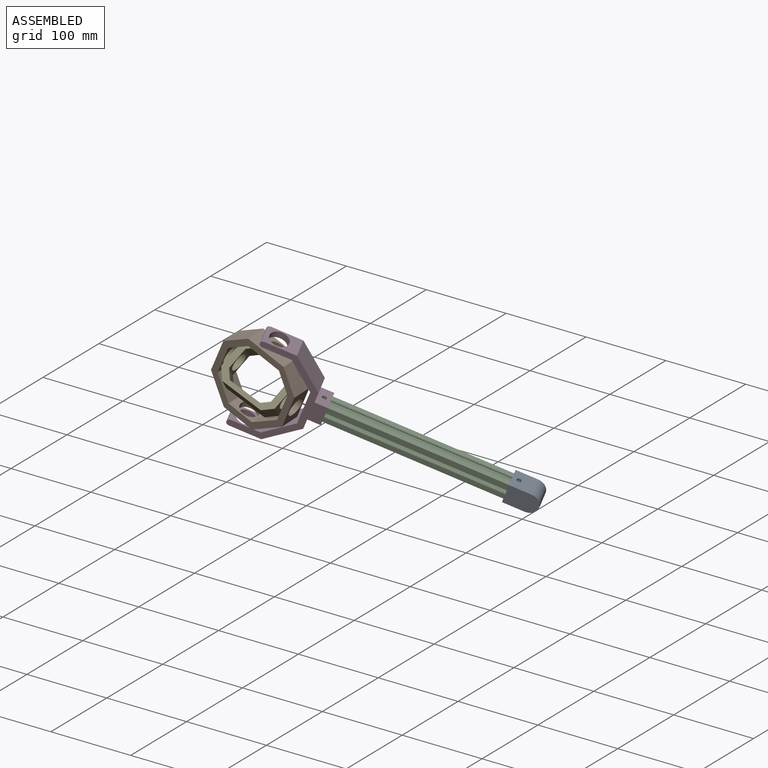
[diagram: assembled view]
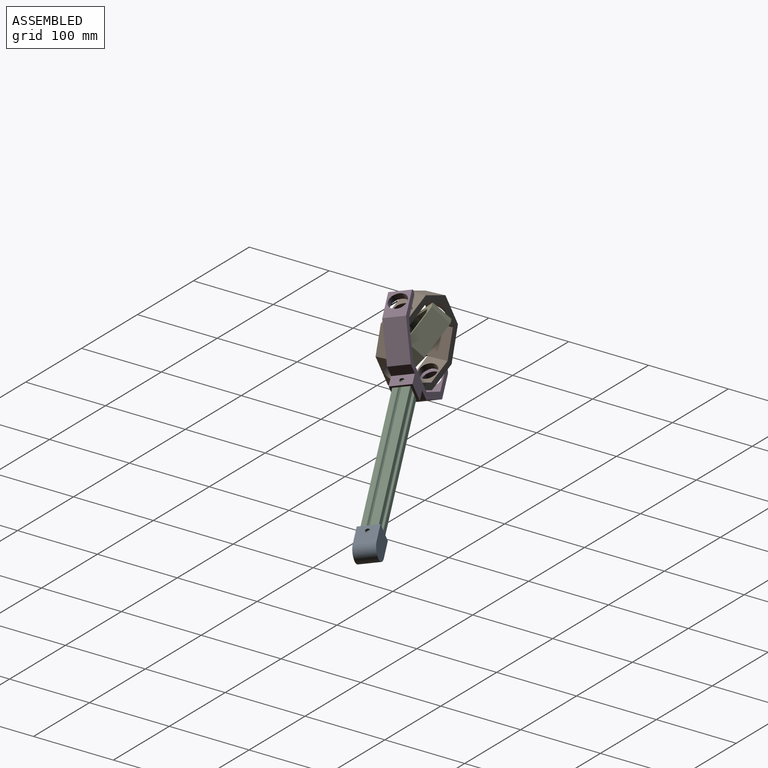
[diagram: assembled view, second angle]
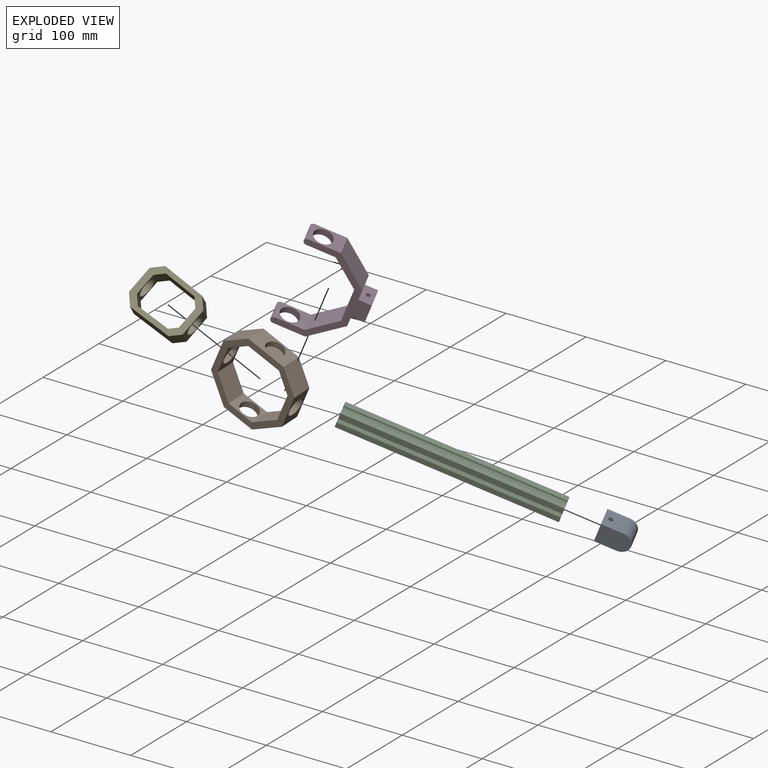
[diagram: exploded view]
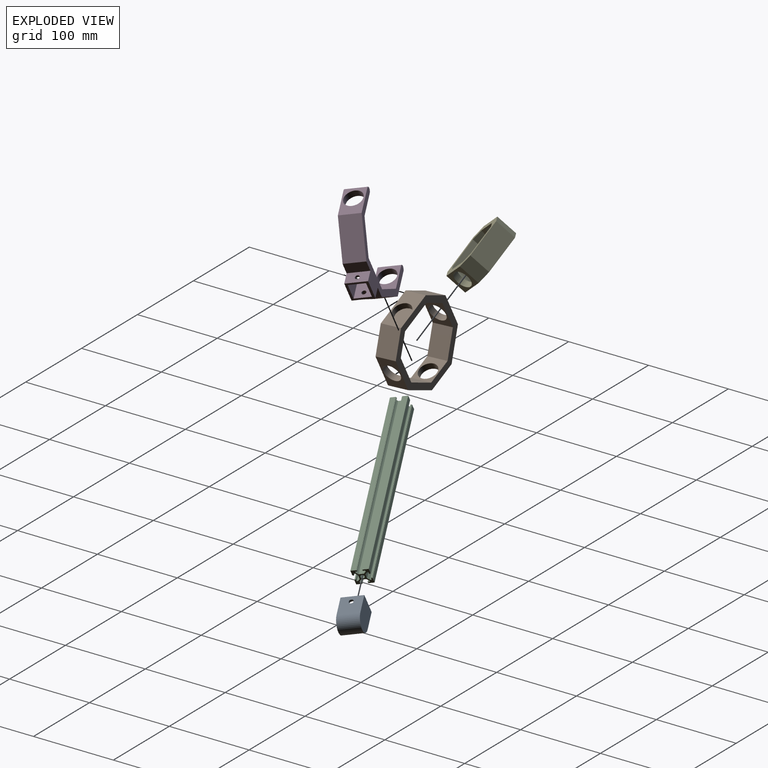
[diagram: exploded view, second angle]
ASSEMBLY  parts=5 mates=4
PART A: 13 faces, bbox 37.5x25x26 mm
  f0: plane 26x25mm, normal (-1,0,0), area 250mm2, adj f1,f2,f4,f5,f6,f7,f8,f9
  f1: plane 26x25mm, normal (0,1,0), area 626.2mm2, adj f0,f3,f4,f5,f11
  f2: plane 26x25mm, normal (0,-1,0), area 626.2mm2, adj f0,f3,f4,f5,f12
  f3: cylinder r=12.5mm len=26mm, axis (0,0,-1), area 1021mm2, adj f1,f2,f4,f5
  f4: plane 37.5x25mm, normal (0,0,1), area 870.4mm2, adj f0,f1,f2,f3
  f5: plane 37.5x25mm, normal (0,0,-1), area 870.4mm2, adj f0,f1,f2,f3
  f6: plane 25x20mm, normal (0,1,0), area 476.2mm2, adj f0,f7,f9,f10,f12
  f7: plane 25x20mm, normal (0,0,-1), area 500mm2, adj f0,f6,f8,f10
  f8: plane 25x20mm, normal (0,-1,0), area 476.2mm2, adj f0,f7,f9,f10,f11
  f9: plane 25x20mm, normal (0,0,1), area 500mm2, adj f0,f6,f8,f10
  f10: plane 20x20mm, normal (-1,0,0), area 400mm2, adj f6,f7,f8,f9
  f11: cylinder r=2.75mm len=5.5mm, axis (0,-1,0), area 43.2mm2, adj f1,f8
  f12: cylinder r=2.75mm len=5.5mm, axis (0,-1,0), area 43.2mm2, adj f2,f6
PART B: 23 faces, bbox 97.8x96.6x26 mm
  f0: plane 29.51x29.51mm, normal (0.71,-0.71,0), area 1085.2mm2, adj f1,f15,f16,f17
  f1: plane 42.57x26mm, normal (1,0,0), area 718mm2, adj f0,f2,f16,f17,f19
  f2: plane 26x24.51mm, normal (0.71,0.71,0), area 901.4mm2, adj f1,f3,f16,f17
  f3: plane 48.74x26mm, normal (0,1,0), area 878.4mm2, adj f2,f4,f16,f17,f21
  f4: plane 26x24.51mm, normal (-0.71,0.71,0), area 901.4mm2, adj f3,f5,f16,f17
  f5: plane 42.57x26mm, normal (-1,0,0), area 718mm2, adj f4,f6,f16,f17,f18
  f6: plane 29.51x29.51mm, normal (-0.71,-0.71,0), area 1085.2mm2, adj f5,f15,f16,f17
  f7: plane 42.11x26mm, normal (0,-1,0), area 1094.9mm2, adj f8,f14,f16,f17
  f8: plane 26x19.83mm, normal (-0.71,-0.71,0), area 729.1mm2, adj f7,f9,f16,f17
  f9: plane 35.94x26mm, normal (-1,0,0), area 545.6mm2, adj f8,f10,f16,f17,f19
  f10: plane 26x24.83mm, normal (-0.71,0.71,0), area 912.9mm2, adj f9,f11,f16,f17
  f11: plane 32.11x26mm, normal (0,1,0), area 446.1mm2, adj f10,f12,f16,f17,f20
  f12: plane 26x24.83mm, normal (0.71,0.71,0), area 912.9mm2, adj f11,f13,f16,f17
  f13: plane 35.94x26mm, normal (1,0,0), area 545.6mm2, adj f12,f14,f16,f17,f18
  f14: plane 26x19.83mm, normal (0.71,-0.71,0), area 729.1mm2, adj f7,f13,f16,f17
  f15: plane 38.74x26mm, normal (0,-1,0), area 618.4mm2, adj f0,f6,f16,f17,f20
  f16: plane 97.77x96.6mm, normal (0,0,1), area 2391.4mm2, adj f0,f1,f2,f3,f4,f5,f6,f7
  f17: plane 97.77x96.6mm, normal (0,0,-1), area 2391.4mm2, adj f0,f1,f2,f3,f4,f5,f6,f7
  f18: cylinder r=11.12mm len=22.25mm, axis (1,0,0), area 559.2mm2, adj f5,f13
  f19: cylinder r=11.12mm len=22.25mm, axis (1,0,0), area 559.2mm2, adj f1,f9
  f20: cylinder r=11.12mm len=22.25mm, axis (0,-1,0), area 559.2mm2, adj f11,f15
  f21: cylinder r=11.12mm len=22.25mm, axis (0,1,0), area 524.3mm2, adj f3,f22
  f22: plane 22.25x22.25mm, normal (0,1,0), area 388.8mm2, adj f21
PART C: 63 faces, bbox 250x20x20 mm
  f0: plane 250x1.64mm, normal (0,0,-1), area 409.8mm2, adj f1,f59,f61,f62
  f1: plane 250x2.5mm, normal (0,-1,0), area 625mm2, adj f0,f2,f61,f62
  f2: plane 250x1.3mm, normal (0,0,-1), area 325mm2, adj f1,f3,f61,f62
  f3: plane 250x0.5mm, normal (0,1,0), area 125mm2, adj f2,f4,f61,f62
  f4: plane 250x0.5mm, normal (0,0,-1), area 125mm2, adj f3,f5,f61,f62
  f5: plane 250x6.5mm, normal (0,1,0), area 1625mm2, adj f4,f6,f61,f62
  f6: plane 250x6.5mm, normal (0,0,1), area 1625mm2, adj f5,f7,f61,f62
  f7: plane 250x0.5mm, normal (0,-1,0), area 125mm2, adj f6,f8,f61,f62
  f8: plane 250x0.5mm, normal (0,0,1), area 125mm2, adj f7,f9,f61,f62
  f9: plane 250x1.3mm, normal (0,-1,0), area 325mm2, adj f8,f10,f61,f62
  f10: plane 250x2.5mm, normal (0,0,-1), area 625mm2, adj f9,f11,f61,f62
  f11: plane 250x1.64mm, normal (0,-1,0), area 409.8mm2, adj f10,f12,f61,f62
  f12: plane 250x2.56mm, normal (0,-0.71,0.71), area 905.3mm2, adj f11,f13,f61,f62
  f13: plane 250x5.88mm, normal (0,0,1), area 1469.7mm2, adj f12,f14,f61,f62
  f14: plane 250x2.56mm, normal (0,0.71,0.71), area 905.3mm2, adj f13,f15,f61,f62
  f15: plane 250x1.64mm, normal (0,1,0), area 409.8mm2, adj f14,f16,f61,f62
  f16: plane 250x2.5mm, normal (0,0,-1), area 625mm2, adj f15,f17,f61,f62
  f17: plane 250x1.3mm, normal (0,1,0), area 325mm2, adj f16,f18,f61,f62
  f18: plane 250x0.5mm, normal (0,0,1), area 125mm2, adj f17,f19,f61,f62
  f19: plane 250x0.5mm, normal (0,1,0), area 125mm2, adj f18,f20,f61,f62
  f20: plane 250x6.5mm, normal (0,0,1), area 1625mm2, adj f19,f21,f61,f62
  f21: plane 250x6.5mm, normal (0,-1,0), area 1625mm2, adj f20,f22,f61,f62
  f22: plane 250x0.5mm, normal (0,0,-1), area 125mm2, adj f21,f23,f61,f62
  f23: plane 250x0.5mm, normal (0,-1,0), area 125mm2, adj f22,f24,f61,f62
  f24: plane 250x1.3mm, normal (0,0,-1), area 325mm2, adj f23,f25,f61,f62
  f25: plane 250x2.5mm, normal (0,1,0), area 625mm2, adj f24,f26,f61,f62
  f26: plane 250x1.64mm, normal (0,0,-1), area 409.8mm2, adj f25,f27,f61,f62
  f27: plane 250x2.56mm, normal (0,-0.71,-0.71), area 905.3mm2, adj f26,f28,f61,f62
  f28: plane 250x5.88mm, normal (0,-1,0), area 1469.7mm2, adj f27,f29,f61,f62
  f29: plane 250x2.56mm, normal (0,-0.71,0.71), area 905.3mm2, adj f28,f30,f61,f62
  f30: plane 250x1.64mm, normal (0,0,1), area 409.8mm2, adj f29,f31,f61,f62
  f31: plane 250x2.5mm, normal (0,1,0), area 625mm2, adj f30,f32,f61,f62
  f32: plane 250x1.3mm, normal (0,0,1), area 325mm2, adj f31,f33,f61,f62
  f33: plane 250x0.5mm, normal (0,-1,0), area 125mm2, adj f32,f34,f61,f62
  f34: plane 250x0.5mm, normal (0,0,1), area 125mm2, adj f33,f35,f61,f62
  f35: plane 250x6.5mm, normal (0,-1,0), area 1625mm2, adj f34,f36,f61,f62
  f36: plane 250x6.5mm, normal (0,0,-1), area 1625mm2, adj f35,f37,f61,f62
  f37: plane 250x0.5mm, normal (0,1,0), area 125mm2, adj f36,f38,f61,f62
  f38: plane 250x0.5mm, normal (0,0,-1), area 125mm2, adj f37,f39,f61,f62
  f39: plane 250x1.3mm, normal (0,1,0), area 325mm2, adj f38,f40,f61,f62
  f40: plane 250x2.5mm, normal (0,0,1), area 625mm2, adj f39,f41,f61,f62
  f41: plane 250x1.64mm, normal (0,1,0), area 409.8mm2, adj f40,f42,f61,f62
  f42: plane 250x2.56mm, normal (0,0.71,-0.71), area 905.3mm2, adj f41,f43,f61,f62
  f43: plane 250x5.88mm, normal (0,0,-1), area 1469.7mm2, adj f42,f44,f61,f62
  f44: plane 250x2.56mm, normal (0,-0.71,-0.71), area 905.3mm2, adj f43,f45,f61,f62
  f45: plane 250x1.64mm, normal (0,-1,0), area 409.8mm2, adj f44,f46,f61,f62
  f46: plane 250x2.5mm, normal (0,0,1), area 625mm2, adj f45,f47,f61,f62
  f47: plane 250x1.3mm, normal (0,-1,0), area 325mm2, adj f46,f48,f61,f62
  f48: plane 250x0.5mm, normal (0,0,-1), area 125mm2, adj f47,f49,f61,f62
  f49: plane 250x0.5mm, normal (0,-1,0), area 125mm2, adj f48,f50,f61,f62
  f50: plane 250x6.5mm, normal (0,0,-1), area 1625mm2, adj f49,f51,f61,f62
  f51: plane 250x6.5mm, normal (0,1,0), area 1625mm2, adj f50,f52,f61,f62
  f52: plane 250x0.5mm, normal (0,0,1), area 125mm2, adj f51,f53,f61,f62
  f53: plane 250x0.5mm, normal (0,1,0), area 125mm2, adj f52,f54,f61,f62
  f54: plane 250x1.3mm, normal (0,0,1), area 325mm2, adj f53,f55,f61,f62
  f55: plane 250x2.5mm, normal (0,-1,0), area 625mm2, adj f54,f56,f61,f62
  f56: plane 250x1.64mm, normal (0,0,1), area 409.8mm2, adj f55,f57,f61,f62
  f57: plane 250x2.56mm, normal (0,0.71,0.71), area 905.3mm2, adj f56,f58,f61,f62
  f58: plane 250x5.88mm, normal (0,1,0), area 1469.7mm2, adj f57,f59,f61,f62
  f59: plane 250x2.56mm, normal (0,0.71,-0.71), area 905.3mm2, adj f0,f58,f61,f62
  f60: cylinder r=2.4mm len=250mm, axis (-1,0,0), area 3769.9mm2, adj f61,f62
  f61: plane 20x20mm, normal (1,0,0), area 178.1mm2, adj f0,f1,f2,f3,f4,f5,f6,f7
  f62: plane 20x20mm, normal (-1,0,0), area 178.1mm2, adj f0,f1,f2,f3,f4,f5,f6,f7
PART D: 26 faces, bbox 90.5x123.3x26 mm
  f0: plane 26x25mm, normal (1,0,0), area 250mm2, adj f2,f15,f16,f17,f20,f21,f22,f23
  f1: plane 45.88x26mm, normal (-1,0,0), area 792.9mm2, adj f8,f9,f16,f17,f20,f21,f22,f23
  f2: plane 26x15mm, normal (0,1,0), area 366.2mm2, adj f0,f3,f16,f17,f24
  f3: plane 26x13.76mm, normal (1,0,0), area 357.6mm2, adj f2,f4,f16,f17
  f4: plane 35.37x35.37mm, normal (0.71,0.71,0), area 1300.6mm2, adj f3,f5,f16,f17
  f5: plane 36.14x26mm, normal (0,1,0), area 550.9mm2, adj f4,f6,f16,f17,f19
  f6: cylinder r=4mm len=26mm, axis (0,0,-1), area 326.7mm2, adj f5,f7,f16,f17
  f7: plane 32.83x26mm, normal (0,-1,0), area 464.7mm2, adj f6,f8,f16,f17,f19
  f8: plane 30.69x30.69mm, normal (-0.71,-0.71,0), area 1128.3mm2, adj f1,f7,f16,f17
  f9: plane 30.69x30.69mm, normal (-0.71,0.71,0), area 1128.3mm2, adj f1,f10,f16,f17
  f10: plane 32.83x26mm, normal (0,1,0), area 464.7mm2, adj f9,f11,f16,f17,f18
  f11: cylinder r=4mm len=26mm, axis (0,0,-1), area 326.7mm2, adj f10,f12,f16,f17
  f12: plane 36.14x26mm, normal (0,-1,0), area 550.9mm2, adj f11,f13,f16,f17,f18
  f13: plane 35.37x35.37mm, normal (0.71,-0.71,0), area 1300.6mm2, adj f12,f14,f16,f17
  f14: plane 26x13.76mm, normal (1,0,0), area 357.6mm2, adj f13,f15,f16,f17
  f15: plane 26x15mm, normal (0,-1,0), area 366.2mm2, adj f0,f14,f16,f17,f25
  f16: plane 123.26x90.51mm, normal (0,0,1), area 2118mm2, adj f0,f1,f2,f3,f4,f5,f6,f7
  f17: plane 123.26x90.51mm, normal (0,0,-1), area 2118mm2, adj f0,f1,f2,f3,f4,f5,f6,f7
  f18: cylinder r=11.12mm len=22.25mm, axis (0,-1,0), area 559.2mm2, adj f10,f12
  f19: cylinder r=11.12mm len=22.25mm, axis (0,1,0), area 559.2mm2, adj f5,f7
  f20: plane 23x20mm, normal (0,1,0), area 436.2mm2, adj f0,f1,f21,f23,f25
  f21: plane 23x20mm, normal (0,0,-1), area 460mm2, adj f0,f1,f20,f22
  f22: plane 23x20mm, normal (0,-1,0), area 436.2mm2, adj f0,f1,f21,f23,f24
  f23: plane 23x20mm, normal (0,0,1), area 460mm2, adj f0,f1,f20,f22
  f24: cylinder r=2.75mm len=5.5mm, axis (0,-1,0), area 43.2mm2, adj f2,f22
  f25: cylinder r=2.75mm len=5.5mm, axis (0,-1,0), area 43.2mm2, adj f15,f20
PART E: 20 faces, bbox 73.8x55.7x26 mm
  f0: plane 32.63x26mm, normal (-1,0,0), area 459.5mm2, adj f1,f15,f16,f17,f18
  f1: plane 26x11.54mm, normal (-0.71,-0.71,0), area 424.2mm2, adj f0,f2,f16,f17
  f2: plane 51.95x26mm, normal (0.02,-1,0), area 1351.1mm2, adj f1,f3,f16,f17
  f3: plane 26x10.29mm, normal (0.71,-0.71,0), area 378.2mm2, adj f2,f4,f16,f17
  f4: plane 32.63x26mm, normal (1,0,0), area 459.5mm2, adj f3,f5,f16,f17,f19
  f5: plane 26x11.39mm, normal (0.71,0.71,0), area 418.8mm2, adj f4,f6,f16,f17
  f6: plane 50.85x26mm, normal (0,1,0), area 1322mm2, adj f5,f15,f16,f17
  f7: plane 26x26mm, normal (-1,0,0), area 287.2mm2, adj f8,f14,f16,f17,f19
  f8: plane 26x7.94mm, normal (-0.71,0.71,0), area 292mm2, adj f7,f9,f16,f17
  f9: plane 40.63x26mm, normal (-0.03,1,0), area 1057mm2, adj f8,f10,f16,f17
  f10: plane 26x9.19mm, normal (0.71,0.71,0), area 338mm2, adj f9,f11,f16,f17
  f11: plane 26x26mm, normal (1,0,0), area 287.2mm2, adj f10,f12,f16,f17,f18
  f12: plane 26x9.19mm, normal (0.71,-0.71,0), area 338mm2, adj f11,f13,f16,f17
  f13: plane 39.38x26mm, normal (0,-1,0), area 1024mm2, adj f12,f14,f16,f17
  f14: plane 26x9.19mm, normal (-0.71,-0.71,0), area 338mm2, adj f7,f13,f16,f17
  f15: plane 26x11.54mm, normal (-0.71,0.71,0), area 424.2mm2, adj f0,f6,f16,f17
  f16: plane 73.77x55.7mm, normal (0,0,1), area 1436.8mm2, adj f0,f1,f2,f3,f4,f5,f6,f7
  f17: plane 73.77x55.7mm, normal (0,0,-1), area 1436.8mm2, adj f0,f1,f2,f3,f4,f5,f6,f7
  f18: cylinder r=11.12mm len=22.25mm, axis (1,0,0), area 559.2mm2, adj f0,f11
  f19: cylinder r=11.12mm len=22.25mm, axis (1,0,0), area 559.2mm2, adj f4,f7
PLACE A rot(axis=(0.94,0.35,-0.01),103.2deg) t=(184.94,78.42,38.02)mm
PLACE B rot(axis=(0.96,0.19,-0.21),96.8deg) t=(15.18,-1.07,110.57)mm
PLACE C rot(axis=(0.94,0.35,-0.01),103.2deg) t=(163.25,68.3,47.13)mm
PLACE D rot(axis=(0.94,0.35,-0.01),103.2deg) t=(14.69,-0.98,109.51)mm
PLACE E rot(axis=(0.86,0.47,-0.19),50.2deg) t=(15.18,-1.07,110.57)mm fixed
MATE fastened A.f10 <-> C.f61  axis (-0.85,-0.4,0.36) through (276.59,107.77,9.45)mm
MATE revolute D.f18 <-> B.f20  axis (0.42,-0.08,0.91) through (-7.61,3.08,60.91)mm
MATE fastened C.f62 <-> D.f1  axis (-0.85,-0.4,0.36) through (64.84,9.01,98.37)mm
MATE revolute E.f18 <-> B.f18  axis (0.91,0,-0.42) through (46.43,-1.07,96.23)mm
